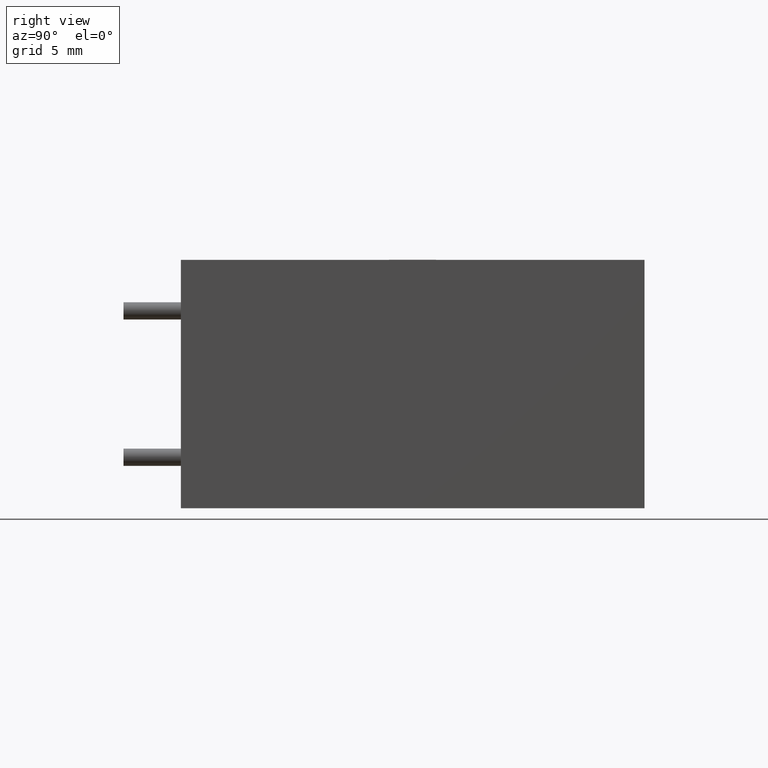
[diagram: clean part render]
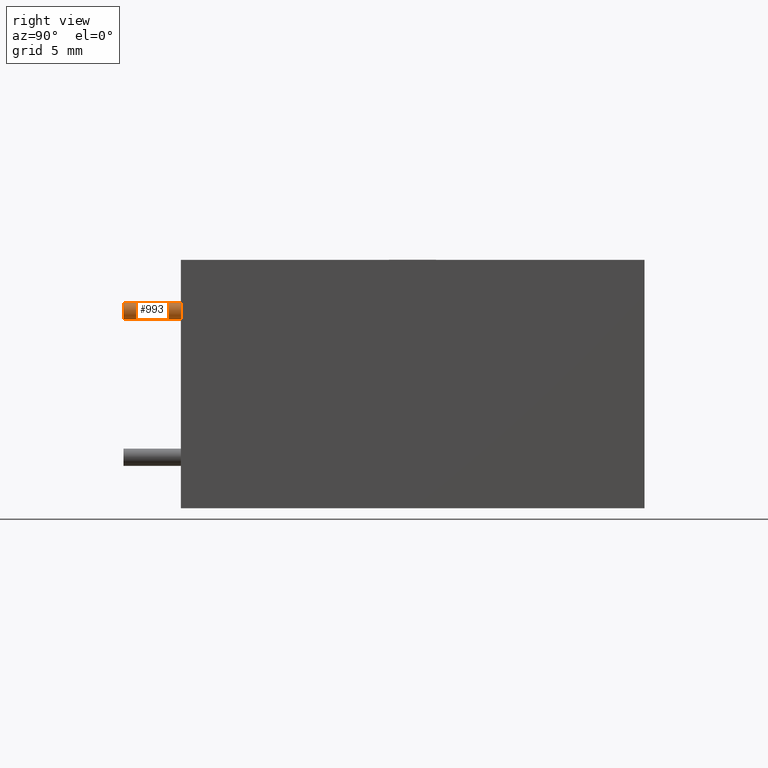
[diagram: same view with one face highlighted and labeled with its STEP entity id]
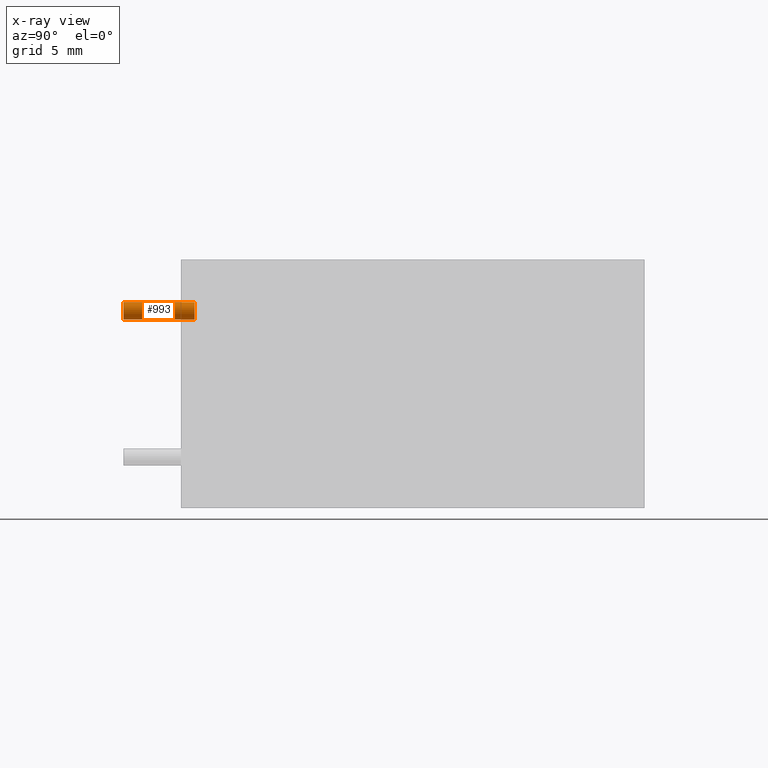
[diagram: x-ray of the same camera — body ghosted, the highlighted face saturated]
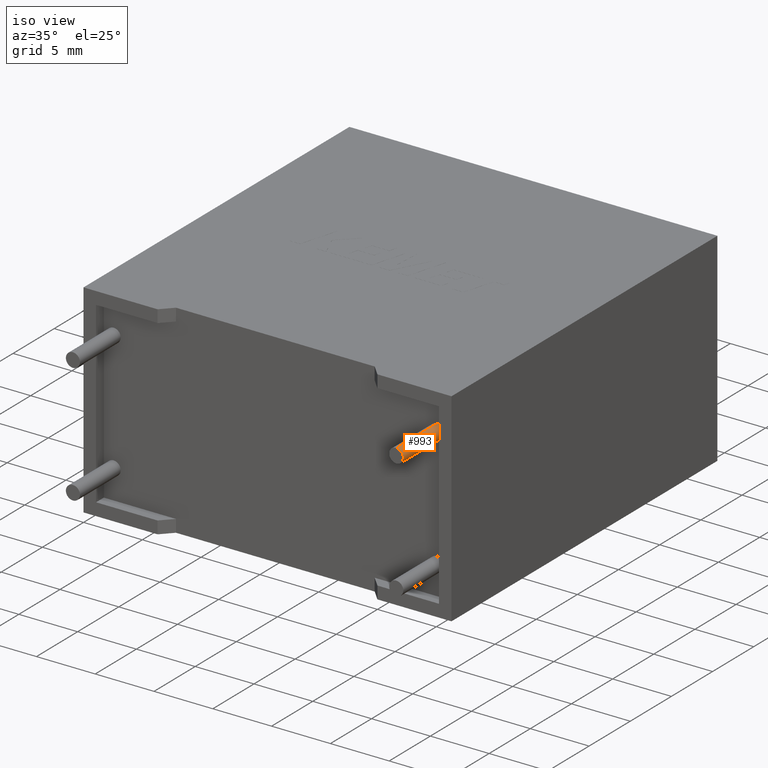
[diagram: same view with one face highlighted and labeled with its STEP entity id]
A machine part, right view. The second image highlights one B-rep face of the part: STEP entity #993.
The next image is the same camera in x-ray: the body ghosted, the highlighted face saturated — about 0% of this face is hidden behind the body in this view.
A second angle (iso view) of the same face is appended — the face is thin or edge-on in the first view.
In plain terms, the highlighted cylindrical surface (edge-blend (fillet) strip) has radius 0.6 mm, axis along (-0, 1, -0).
Its self-contained STEP definition (entity closure, byte-faithful):
#43 = DIRECTION ( 'NONE',  ( 0.000000000000000000, 0.000000000000000000, -1.000000000000000000 ) ) ;
#61 = LINE ( 'NONE', #349, #1963 ) ;
#204 = CIRCLE ( 'NONE', #1904, 0.5999999999999998668 ) ;
#276 = DIRECTION ( 'NONE',  ( -0.000000000000000000, 1.000000000000000000, -0.000000000000000000 ) ) ;
#340 = EDGE_CURVE ( 'NONE', #1384, #2419, #629, .T. ) ;
#349 = CARTESIAN_POINT ( 'NONE',  ( 29.40000000000000213, -3.999999999999999112, 14.34999999999999787 ) ) ;
#418 = VERTEX_POINT ( 'NONE', #2222 ) ;
#423 = VERTEX_POINT ( 'NONE', #2747 ) ;
#527 = ORIENTED_EDGE ( 'NONE', *, *, #2565, .T. ) ;
#629 = CIRCLE ( 'NONE', #2405, 0.5999999999999998668 ) ;
#796 = CARTESIAN_POINT ( 'NONE',  ( 29.40000000000000213, -3.999999999999999112, 13.14999999999999858 ) ) ;
#993 = ADVANCED_FACE ( 'NONE', ( #2456 ), #1463, .T. ) ;
#996 = DIRECTION ( 'NONE',  ( -0.000000000000000000, 1.000000000000000000, -0.000000000000000000 ) ) ;
#1008 = CARTESIAN_POINT ( 'NONE',  ( 29.40000000000000213, -3.999999999999999112, 13.74999999999999822 ) ) ;
#1038 = CARTESIAN_POINT ( 'NONE',  ( 29.40000000000000213, -3.999999999999999112, 13.14999999999999858 ) ) ;
#1302 = DIRECTION ( 'NONE',  ( 0.000000000000000000, 0.000000000000000000, -1.000000000000000000 ) ) ;
#1384 = VERTEX_POINT ( 'NONE', #2613 ) ;
#1435 = VECTOR ( 'NONE', #276, 1000.000000000000000 ) ;
#1463 = CYLINDRICAL_SURFACE ( 'NONE', #2887, 0.5999999999999998668 ) ;
#1587 = DIRECTION ( 'NONE',  ( 0.000000000000000000, -1.000000000000000000, 0.000000000000000000 ) ) ;
#1668 = ORIENTED_EDGE ( 'NONE', *, *, #1915, .F. ) ;
#1735 = CARTESIAN_POINT ( 'NONE',  ( 29.40000000000000213, -3.999999999999999112, 13.74999999999999822 ) ) ;
#1787 = ORIENTED_EDGE ( 'NONE', *, *, #340, .T. ) ;
#1858 = ORIENTED_EDGE ( 'NONE', *, *, #2754, .T. ) ;
#1904 = AXIS2_PLACEMENT_3D ( 'NONE', #2233, #1587, #43 ) ;
#1915 = EDGE_CURVE ( 'NONE', #1384, #423, #61, .T. ) ;
#1963 = VECTOR ( 'NONE', #2759, 1000.000000000000000 ) ;
#1967 = DIRECTION ( 'NONE',  ( -0.000000000000000000, 1.000000000000000000, -0.000000000000000000 ) ) ;
#2222 = CARTESIAN_POINT ( 'NONE',  ( 29.40000000000000213, 0.9496200000000000196, 13.14999999999999858 ) ) ;
#2226 = EDGE_LOOP ( 'NONE', ( #1787, #1858, #527, #1668 ) ) ;
#2233 = CARTESIAN_POINT ( 'NONE',  ( 29.40000000000000213, 0.9496200000000000196, 13.74999999999999822 ) ) ;
#2246 = LINE ( 'NONE', #796, #1435 ) ;
#2405 = AXIS2_PLACEMENT_3D ( 'NONE', #1008, #1967, #1302 ) ;
#2419 = VERTEX_POINT ( 'NONE', #1038 ) ;
#2456 = FACE_OUTER_BOUND ( 'NONE', #2226, .T. ) ;
#2565 = EDGE_CURVE ( 'NONE', #418, #423, #204, .T. ) ;
#2613 = CARTESIAN_POINT ( 'NONE',  ( 29.40000000000000213, -3.999999999999999112, 14.34999999999999787 ) ) ;
#2652 = DIRECTION ( 'NONE',  ( 0.000000000000000000, 0.000000000000000000, 1.000000000000000000 ) ) ;
#2747 = CARTESIAN_POINT ( 'NONE',  ( 29.40000000000000213, 0.9496200000000000196, 14.34999999999999787 ) ) ;
#2754 = EDGE_CURVE ( 'NONE', #2419, #418, #2246, .T. ) ;
#2759 = DIRECTION ( 'NONE',  ( -0.000000000000000000, 1.000000000000000000, -0.000000000000000000 ) ) ;
#2887 = AXIS2_PLACEMENT_3D ( 'NONE', #1735, #996, #2652 ) ;